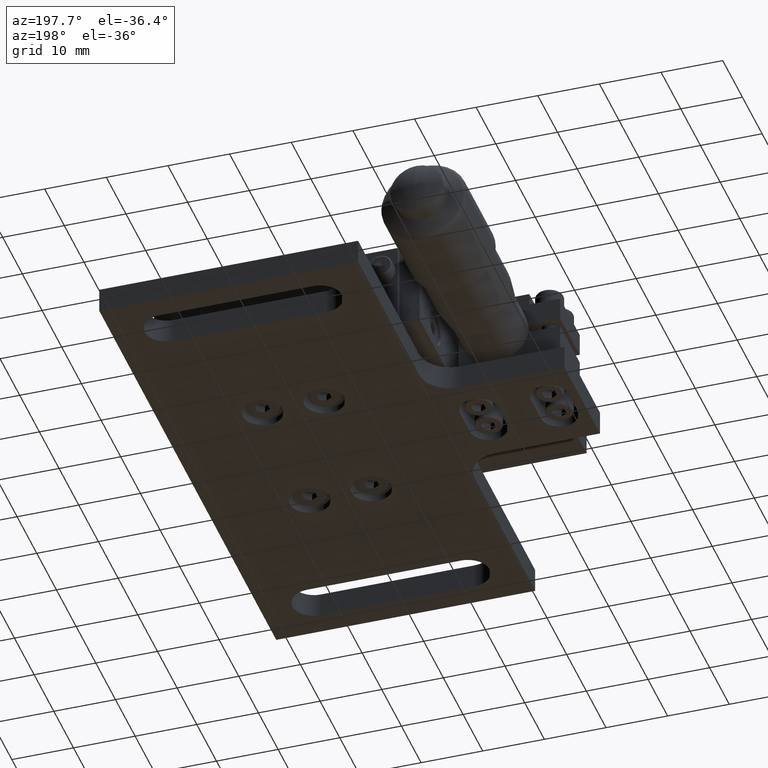
[diagram: clean part render]
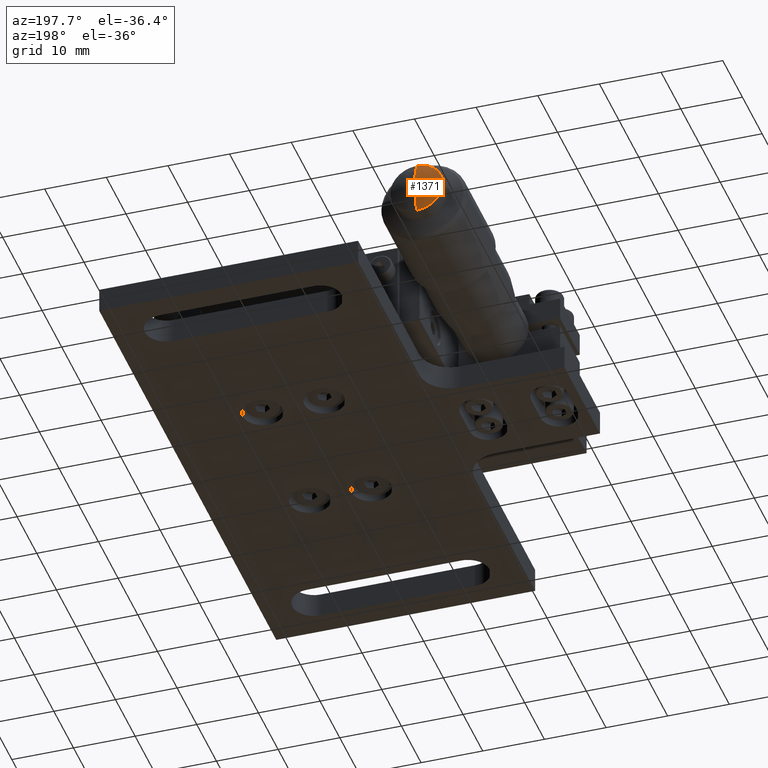
[diagram: same view with one face highlighted and labeled with its STEP entity id]
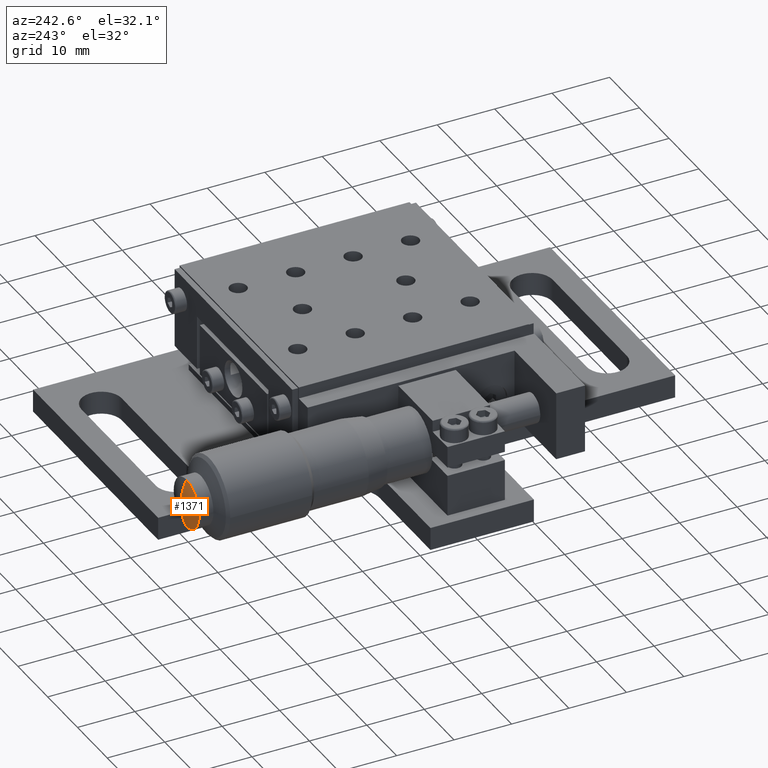
[diagram: same view with one face highlighted and labeled with its STEP entity id]
A machine part, auxiliary view. The second image highlights one B-rep face of the part: STEP entity #1371.
A second angle (auxiliary view) of the same face is appended — the face is thin or edge-on in the first view.
In plain terms, the highlighted face is a freeform B-spline surface patch.
Its self-contained STEP definition (entity closure, byte-faithful):
#1371=ADVANCED_FACE('',(#1992),#22113,.T.);
#1992=FACE_OUTER_BOUND('',#2715,.T.);
#2715=EDGE_LOOP('',(#5900,#5901,#5902,#5903,#5904));
#5900=ORIENTED_EDGE('',*,*,#18602,.F.);
#5901=ORIENTED_EDGE('',*,*,#18597,.F.);
#5902=ORIENTED_EDGE('',*,*,#18595,.F.);
#5903=ORIENTED_EDGE('',*,*,#18600,.F.);
#5904=ORIENTED_EDGE('',*,*,#18601,.F.);
#7395=PCURVE('',#21960,#10625);
#7397=PCURVE('',#21961,#10627);
#7400=PCURVE('',#21961,#10630);
#7405=PCURVE('',#21962,#10635);
#7408=PCURVE('',#21962,#10638);
#9130=PCURVE('',#22113,#12360);
#9131=PCURVE('',#22113,#12361);
#9132=PCURVE('',#22113,#12362);
#9133=PCURVE('',#22113,#12363);
#9134=PCURVE('',#22113,#12364);
#10625=DEFINITIONAL_REPRESENTATION('',(#13987),#46496);
#10627=DEFINITIONAL_REPRESENTATION('',(#13990),#46496);
#10630=DEFINITIONAL_REPRESENTATION('',(#13993),#46496);
#10635=DEFINITIONAL_REPRESENTATION('',(#13998),#46496);
#10638=DEFINITIONAL_REPRESENTATION('',(#14001),#46496);
#12360=DEFINITIONAL_REPRESENTATION('',(#16043),#46496);
#12361=DEFINITIONAL_REPRESENTATION('',(#16044),#46496);
#12362=DEFINITIONAL_REPRESENTATION('',(#16045),#46496);
#12363=DEFINITIONAL_REPRESENTATION('',(#16046),#46496);
#12364=DEFINITIONAL_REPRESENTATION('',(#16047),#46496);
#13987=B_SPLINE_CURVE_WITH_KNOTS('',1,(#38996,#38997),.UNSPECIFIED.,.F.,
 .F.,(2,2),(-0.746256432227072,0.),.UNSPECIFIED.);
#13990=B_SPLINE_CURVE_WITH_KNOTS('',1,(#39005,#39006),.UNSPECIFIED.,.F.,
 .F.,(2,2),(-13.3517687777562,-7.42214082110515),.UNSPECIFIED.);
#13993=B_SPLINE_CURVE_WITH_KNOTS('',1,(#39022,#39023),.UNSPECIFIED.,.F.,
 .F.,(2,2),(-7.42214082110517,-0.746256432227072),.UNSPECIFIED.);
#13998=B_SPLINE_CURVE_WITH_KNOTS('',1,(#39035,#39036),.UNSPECIFIED.,.F.,
 .F.,(2,2),(-1.5707963267949,-1.10861499240312),.UNSPECIFIED.);
#14001=B_SPLINE_CURVE_WITH_KNOTS('',1,(#39044,#39045),.UNSPECIFIED.,.F.,
 .F.,(2,2),(1.10861499240312,1.5707963267949),.UNSPECIFIED.);
#16043=B_SPLINE_CURVE_WITH_KNOTS('',1,(#46350,#46351),.UNSPECIFIED.,.F.,
 .F.,(2,2),(1.10861499240312,1.5707963267949),.UNSPECIFIED.);
#16044=B_SPLINE_CURVE_WITH_KNOTS('',1,(#46352,#46353),.UNSPECIFIED.,.F.,
 .F.,(2,2),(-13.3517687777562,-7.42214082110515),.UNSPECIFIED.);
#16045=B_SPLINE_CURVE_WITH_KNOTS('',1,(#46354,#46355),.UNSPECIFIED.,.F.,
 .F.,(2,2),(-0.746256432227072,0.),.UNSPECIFIED.);
#16046=B_SPLINE_CURVE_WITH_KNOTS('',1,(#46356,#46357),.UNSPECIFIED.,.F.,
 .F.,(2,2),(-7.42214082110517,-0.746256432227072),.UNSPECIFIED.);
#16047=B_SPLINE_CURVE_WITH_KNOTS('',1,(#46358,#46359),.UNSPECIFIED.,.F.,
 .F.,(2,2),(-1.5707963267949,-1.10861499240312),.UNSPECIFIED.);
#16911=SURFACE_CURVE('',#20147,(#7395,#9132),.PCURVE_S1.);
#16913=SURFACE_CURVE('',#20148,(#7397,#9131),.PCURVE_S1.);
#16916=SURFACE_CURVE('',#20151,(#7400,#9133),.PCURVE_S1.);
#16917=SURFACE_CURVE('',#20152,(#7405,#9134),.PCURVE_S1.);
#16918=SURFACE_CURVE('',#20153,(#7408,#9130),.PCURVE_S1.);
#18595=EDGE_CURVE('',#21265,#21263,#16911,.T.);
#18597=EDGE_CURVE('',#21263,#21268,#16913,.T.);
#18600=EDGE_CURVE('',#21809,#21265,#16916,.T.);
#18601=EDGE_CURVE('',#21267,#21809,#16917,.T.);
#18602=EDGE_CURVE('',#21268,#21267,#16918,.T.);
#20147=(
BOUNDED_CURVE()
B_SPLINE_CURVE(2,(#38993,#38994,#38995),.UNSPECIFIED.,.F.,.F.)
B_SPLINE_CURVE_WITH_KNOTS((3,3),(-0.746256432227072,0.),.UNSPECIFIED.)
CURVE()
GEOMETRIC_REPRESENTATION_ITEM()
RATIONAL_B_SPLINE_CURVE((1.,0.996148504894485,1.))
REPRESENTATION_ITEM('')
);
#20148=(
BOUNDED_CURVE()
B_SPLINE_CURVE(2,(#39002,#39003,#39004),.UNSPECIFIED.,.F.,.F.)
B_SPLINE_CURVE_WITH_KNOTS((3,3),(-13.3517687777562,-7.42214082110515),
 .UNSPECIFIED.)
CURVE()
GEOMETRIC_REPRESENTATION_ITEM()
RATIONAL_B_SPLINE_CURVE((1.,0.766383992701048,1.))
REPRESENTATION_ITEM('')
);
#20151=(
BOUNDED_CURVE()
B_SPLINE_CURVE(2,(#39019,#39020,#39021),.UNSPECIFIED.,.F.,.F.)
B_SPLINE_CURVE_WITH_KNOTS((3,3),(-7.42214082110517,-0.746256432227072),
 .UNSPECIFIED.)
CURVE()
GEOMETRIC_REPRESENTATION_ITEM()
RATIONAL_B_SPLINE_CURVE((1.,0.707106781186547,1.))
REPRESENTATION_ITEM('')
);
#20152=(
BOUNDED_CURVE()
B_SPLINE_CURVE(2,(#39032,#39033,#39034),.UNSPECIFIED.,.F.,.F.)
B_SPLINE_CURVE_WITH_KNOTS((3,3),(-1.5707963267949,-1.10861499240312),
 .UNSPECIFIED.)
CURVE()
GEOMETRIC_REPRESENTATION_ITEM()
RATIONAL_B_SPLINE_CURVE((1.,0.973417168333578,1.))
REPRESENTATION_ITEM('')
);
#20153=(
BOUNDED_CURVE()
B_SPLINE_CURVE(2,(#39041,#39042,#39043),.UNSPECIFIED.,.F.,.F.)
B_SPLINE_CURVE_WITH_KNOTS((3,3),(1.10861499240312,1.5707963267949),
 .UNSPECIFIED.)
CURVE()
GEOMETRIC_REPRESENTATION_ITEM()
RATIONAL_B_SPLINE_CURVE((1.,0.973417168333578,1.))
REPRESENTATION_ITEM('')
);
#21263=VERTEX_POINT('',#36434);
#21265=VERTEX_POINT('',#36436);
#21267=VERTEX_POINT('',#36438);
#21268=VERTEX_POINT('',#36439);
#21809=VERTEX_POINT('',#36980);
#21960=(
BOUNDED_SURFACE()
B_SPLINE_SURFACE(2,1,((#32786,#32787),(#32788,#32789),(#32790,#32791),(#32792,
#32793),(#32794,#32795),(#32796,#32797),(#32798,#32799),(#32800,#32801),
(#32802,#32803)),.UNSPECIFIED.,.T.,.F.,.F.)
B_SPLINE_SURFACE_WITH_KNOTS((3,2,2,2,3),(2,2),(0.,1.5707963267949,3.14159265358979,
4.71238898038469,6.28318530717959),(0.,3.24000000000004),.UNSPECIFIED.)
GEOMETRIC_REPRESENTATION_ITEM()
RATIONAL_B_SPLINE_SURFACE(((1.,1.),(0.707106781186548,0.707106781186548),
(1.,1.),(0.707106781186548,0.707106781186548),(1.,1.),(0.707106781186548,
0.707106781186548),(1.,1.),(0.707106781186548,0.707106781186548),(1.,1.)))
REPRESENTATION_ITEM('')
SURFACE()
);
#21961=(
BOUNDED_SURFACE()
B_SPLINE_SURFACE(2,1,((#32804,#32805),(#32806,#32807),(#32808,#32809),(#32810,
#32811),(#32812,#32813),(#32814,#32815),(#32816,#32817),(#32818,#32819),
(#32820,#32821)),.UNSPECIFIED.,.T.,.F.,.F.)
B_SPLINE_SURFACE_WITH_KNOTS((3,2,2,2,3),(2,2),(0.,1.5707963267949,3.14159265358979,
4.71238898038469,6.28318530717959),(0.,3.24000000000004),.UNSPECIFIED.)
GEOMETRIC_REPRESENTATION_ITEM()
RATIONAL_B_SPLINE_SURFACE(((1.,1.),(0.707106781186548,0.707106781186548),
(1.,1.),(0.707106781186548,0.707106781186548),(1.,1.),(0.707106781186548,
0.707106781186548),(1.,1.),(0.707106781186548,0.707106781186548),(1.,1.)))
REPRESENTATION_ITEM('')
SURFACE()
);
#21962=(
BOUNDED_SURFACE()
B_SPLINE_SURFACE(2,2,((#32822,#32823,#32824,#32825,#32826),(#32827,#32828,
#32829,#32830,#32831),(#32832,#32833,#32834,#32835,#32836),(#32837,#32838,
#32839,#32840,#32841),(#32842,#32843,#32844,#32845,#32846)),
 .UNSPECIFIED.,.F.,.F.,.F.)
B_SPLINE_SURFACE_WITH_KNOTS((3,2,3),(3,2,3),(0.,1.5707963267949,3.14159265358979),
(-1.5707963267949,0.,1.5707963267949),.UNSPECIFIED.)
GEOMETRIC_REPRESENTATION_ITEM()
RATIONAL_B_SPLINE_SURFACE(((1.,0.707106781186548,1.,0.707106781186548,1.),
(0.707106781186548,0.5,0.707106781186548,0.5,0.707106781186548),(1.,0.707106781186548,
1.,0.707106781186548,1.),(0.707106781186548,0.5,0.707106781186548,0.5,0.707106781186548),
(1.,0.707106781186548,1.,0.707106781186548,1.)))
REPRESENTATION_ITEM('')
SURFACE()
);
#22113=(
BOUNDED_SURFACE()
B_SPLINE_SURFACE(2,2,((#36066,#36067,#36068,#36069,#36070),(#36071,#36072,
#36073,#36074,#36075),(#36076,#36077,#36078,#36079,#36080),(#36081,#36082,
#36083,#36084,#36085),(#36086,#36087,#36088,#36089,#36090)),
 .UNSPECIFIED.,.F.,.F.,.F.)
B_SPLINE_SURFACE_WITH_KNOTS((3,2,3),(3,2,3),(3.14159265358979,4.71238898038469,
6.28318530717959),(-1.5707963267949,0.,1.5707963267949),.UNSPECIFIED.)
GEOMETRIC_REPRESENTATION_ITEM()
RATIONAL_B_SPLINE_SURFACE(((1.,0.707106781186548,1.,0.707106781186548,1.),
(0.707106781186548,0.5,0.707106781186548,0.5,0.707106781186548),(1.,0.707106781186548,
1.,0.707106781186548,1.),(0.707106781186548,0.5,0.707106781186548,0.5,0.707106781186548),
(1.,0.707106781186548,1.,0.707106781186548,1.)))
REPRESENTATION_ITEM('')
SURFACE()
);
#32786=CARTESIAN_POINT('',(-23.4500000000006,42.2046896551723,12.0747069675039));
#32787=CARTESIAN_POINT('',(-23.4500000000006,45.4446896551724,12.0747069675039));
#32788=CARTESIAN_POINT('',(-23.4500000000006,42.2046896551723,16.3247069675038));
#32789=CARTESIAN_POINT('',(-23.4500000000006,45.4446896551724,16.3247069675038));
#32790=CARTESIAN_POINT('',(-19.2000000000007,42.2046896551723,16.3247069675038));
#32791=CARTESIAN_POINT('',(-19.2000000000007,45.4446896551724,16.3247069675038));
#32792=CARTESIAN_POINT('',(-14.9500000000008,42.2046896551723,16.3247069675038));
#32793=CARTESIAN_POINT('',(-14.9500000000008,45.4446896551724,16.3247069675038));
#32794=CARTESIAN_POINT('',(-14.9500000000008,42.2046896551723,12.0747069675039));
#32795=CARTESIAN_POINT('',(-14.9500000000008,45.4446896551724,12.0747069675039));
#32796=CARTESIAN_POINT('',(-14.9500000000008,42.2046896551723,7.824706967504));
#32797=CARTESIAN_POINT('',(-14.9500000000008,45.4446896551724,7.824706967504));
#32798=CARTESIAN_POINT('',(-19.2000000000007,42.2046896551723,7.824706967504));
#32799=CARTESIAN_POINT('',(-19.2000000000007,45.4446896551724,7.824706967504));
#32800=CARTESIAN_POINT('',(-23.4500000000006,42.2046896551723,7.824706967504));
#32801=CARTESIAN_POINT('',(-23.4500000000006,45.4446896551724,7.824706967504));
#32802=CARTESIAN_POINT('',(-23.4500000000006,42.2046896551723,12.0747069675039));
#32803=CARTESIAN_POINT('',(-23.4500000000006,45.4446896551724,12.0747069675039));
#32804=CARTESIAN_POINT('',(-23.4500000000006,42.2046896551723,12.0747069675039));
#32805=CARTESIAN_POINT('',(-23.4500000000006,45.4446896551724,12.0747069675039));
#32806=CARTESIAN_POINT('',(-23.4500000000006,42.2046896551723,16.3247069675038));
#32807=CARTESIAN_POINT('',(-23.4500000000006,45.4446896551724,16.3247069675038));
#32808=CARTESIAN_POINT('',(-19.2000000000007,42.2046896551723,16.3247069675038));
#32809=CARTESIAN_POINT('',(-19.2000000000007,45.4446896551724,16.3247069675038));
#32810=CARTESIAN_POINT('',(-14.9500000000008,42.2046896551723,16.3247069675038));
#32811=CARTESIAN_POINT('',(-14.9500000000008,45.4446896551724,16.3247069675038));
#32812=CARTESIAN_POINT('',(-14.9500000000008,42.2046896551723,12.0747069675039));
#32813=CARTESIAN_POINT('',(-14.9500000000008,45.4446896551724,12.0747069675039));
#32814=CARTESIAN_POINT('',(-14.9500000000008,42.2046896551723,7.824706967504));
#32815=CARTESIAN_POINT('',(-14.9500000000008,45.4446896551724,7.824706967504));
#32816=CARTESIAN_POINT('',(-19.2000000000007,42.2046896551723,7.824706967504));
#32817=CARTESIAN_POINT('',(-19.2000000000007,45.4446896551724,7.824706967504));
#32818=CARTESIAN_POINT('',(-23.4500000000006,42.2046896551723,7.824706967504));
#32819=CARTESIAN_POINT('',(-23.4500000000006,45.4446896551724,7.824706967504));
#32820=CARTESIAN_POINT('',(-23.4500000000006,42.2046896551723,12.0747069675039));
#32821=CARTESIAN_POINT('',(-23.4500000000006,45.4446896551724,12.0747069675039));
#32822=CARTESIAN_POINT('',(-19.2000000000007,46.0746896551724,12.0747069675039));
#32823=CARTESIAN_POINT('',(-19.2000000000007,46.0746896551724,2.54345696750387));
#32824=CARTESIAN_POINT('',(-19.2000000000007,36.5434396551723,2.54345696750387));
#32825=CARTESIAN_POINT('',(-19.2000000000007,27.0121896551723,2.54345696750387));
#32826=CARTESIAN_POINT('',(-19.2000000000007,27.0121896551723,12.0747069675039));
#32827=CARTESIAN_POINT('',(-19.2000000000007,46.0746896551724,12.0747069675039));
#32828=CARTESIAN_POINT('',(-9.66875000000066,46.0746896551724,2.54345696750387));
#32829=CARTESIAN_POINT('',(-9.66875000000066,36.5434396551723,2.54345696750387));
#32830=CARTESIAN_POINT('',(-9.66875000000066,27.0121896551723,2.54345696750387));
#32831=CARTESIAN_POINT('',(-19.2000000000007,27.0121896551723,12.0747069675039));
#32832=CARTESIAN_POINT('',(-19.2000000000007,46.0746896551724,12.0747069675039));
#32833=CARTESIAN_POINT('',(-9.66875000000066,46.0746896551724,12.0747069675039));
#32834=CARTESIAN_POINT('',(-9.66875000000066,36.5434396551723,12.0747069675039));
#32835=CARTESIAN_POINT('',(-9.66875000000066,27.0121896551723,12.0747069675039));
#32836=CARTESIAN_POINT('',(-19.2000000000007,27.0121896551723,12.0747069675039));
#32837=CARTESIAN_POINT('',(-19.2000000000007,46.0746896551724,12.0747069675039));
#32838=CARTESIAN_POINT('',(-9.66875000000066,46.0746896551724,21.6059569675039));
#32839=CARTESIAN_POINT('',(-9.66875000000066,36.5434396551723,21.6059569675039));
#32840=CARTESIAN_POINT('',(-9.66875000000066,27.0121896551723,21.6059569675039));
#32841=CARTESIAN_POINT('',(-19.2000000000007,27.0121896551723,12.0747069675039));
#32842=CARTESIAN_POINT('',(-19.2000000000007,46.0746896551724,12.0747069675039));
#32843=CARTESIAN_POINT('',(-19.2000000000007,46.0746896551724,21.6059569675039));
#32844=CARTESIAN_POINT('',(-19.2000000000007,36.5434396551723,21.605956967504));
#32845=CARTESIAN_POINT('',(-19.2000000000007,27.0121896551723,21.605956967504));
#32846=CARTESIAN_POINT('',(-19.2000000000007,27.0121896551723,12.0747069675039));
#36066=CARTESIAN_POINT('',(-19.2000000000007,46.0746896551724,12.0747069675039));
#36067=CARTESIAN_POINT('',(-19.2000000000007,46.0746896551724,21.6059569675039));
#36068=CARTESIAN_POINT('',(-19.2000000000007,36.5434396551723,21.605956967504));
#36069=CARTESIAN_POINT('',(-19.2000000000007,27.0121896551723,21.6059569675039));
#36070=CARTESIAN_POINT('',(-19.2000000000007,27.0121896551723,12.0747069675039));
#36071=CARTESIAN_POINT('',(-19.2000000000007,46.0746896551724,12.0747069675039));
#36072=CARTESIAN_POINT('',(-28.7312500000007,46.0746896551724,21.6059569675039));
#36073=CARTESIAN_POINT('',(-28.7312500000007,36.5434396551723,21.605956967504));
#36074=CARTESIAN_POINT('',(-28.7312500000007,27.0121896551723,21.6059569675039));
#36075=CARTESIAN_POINT('',(-19.2000000000007,27.0121896551723,12.0747069675039));
#36076=CARTESIAN_POINT('',(-19.2000000000007,46.0746896551724,12.0747069675039));
#36077=CARTESIAN_POINT('',(-28.7312500000007,46.0746896551724,12.0747069675039));
#36078=CARTESIAN_POINT('',(-28.7312500000007,36.5434396551723,12.0747069675039));
#36079=CARTESIAN_POINT('',(-28.7312500000007,27.0121896551723,12.0747069675039));
#36080=CARTESIAN_POINT('',(-19.2000000000007,27.0121896551723,12.0747069675039));
#36081=CARTESIAN_POINT('',(-19.2000000000007,46.0746896551724,12.0747069675039));
#36082=CARTESIAN_POINT('',(-28.7312500000007,46.0746896551724,2.54345696750387));
#36083=CARTESIAN_POINT('',(-28.7312500000007,36.5434396551723,2.54345696750387));
#36084=CARTESIAN_POINT('',(-28.7312500000007,27.0121896551723,2.54345696750387));
#36085=CARTESIAN_POINT('',(-19.2000000000007,27.0121896551723,12.0747069675039));
#36086=CARTESIAN_POINT('',(-19.2000000000007,46.0746896551724,12.0747069675039));
#36087=CARTESIAN_POINT('',(-19.2000000000007,46.0746896551724,2.54345696750387));
#36088=CARTESIAN_POINT('',(-19.2000000000007,36.5434396551723,2.54345696750386));
#36089=CARTESIAN_POINT('',(-19.2000000000007,27.0121896551723,2.54345696750387));
#36090=CARTESIAN_POINT('',(-19.2000000000007,27.0121896551723,12.0747069675039));
#36434=CARTESIAN_POINT('',(-23.3846506723305,45.0746896551724,11.3322793612225));
#36436=CARTESIAN_POINT('',(-23.4500000000006,45.0746896551723,12.0747069675039));
#36438=CARTESIAN_POINT('',(-19.2000000000007,46.0746896551724,12.0747069675039));
#36439=CARTESIAN_POINT('',(-19.2000000000007,45.0746896551724,7.82470696750401));
#36980=CARTESIAN_POINT('',(-19.2000000000007,45.0746896551724,16.3247069675038));
#38993=CARTESIAN_POINT('',(-23.4500000000006,45.0746896551723,12.0747069675039));
#38994=CARTESIAN_POINT('',(-23.4500000000006,45.0746896551723,11.7006171030538));
#38995=CARTESIAN_POINT('',(-23.3846506723305,45.0746896551724,11.3322793612225));
#38996=CARTESIAN_POINT('',(6.28318530717959,2.87000000000002));
#38997=CARTESIAN_POINT('',(6.0945297823525,2.87000000000002));
#39002=CARTESIAN_POINT('',(-23.3846506723305,45.0746896551724,11.3322793612225));
#39003=CARTESIAN_POINT('',(-22.7623481720654,45.0746896551724,7.82470696750401));
#39004=CARTESIAN_POINT('',(-19.2000000000007,45.0746896551724,7.82470696750401));
#39005=CARTESIAN_POINT('',(6.0945297823525,2.87000000000002));
#39006=CARTESIAN_POINT('',(4.71238898038469,2.87000000000001));
#39019=CARTESIAN_POINT('',(-19.2000000000007,45.0746896551724,16.3247069675038));
#39020=CARTESIAN_POINT('',(-23.4500000000006,45.0746896551723,16.3247069675038));
#39021=CARTESIAN_POINT('',(-23.4500000000006,45.0746896551723,12.0747069675039));
#39022=CARTESIAN_POINT('',(1.5707963267949,2.87000000000001));
#39023=CARTESIAN_POINT('',(0.,2.87000000000002));
#39032=CARTESIAN_POINT('',(-19.2000000000007,46.0746896551724,12.0747069675039));
#39033=CARTESIAN_POINT('',(-19.2000000000007,46.0746896551724,14.3173540263274));
#39034=CARTESIAN_POINT('',(-19.2000000000007,45.0746896551724,16.3247069675038));
#39035=CARTESIAN_POINT('',(3.14159265358979,-1.5707963267949));
#39036=CARTESIAN_POINT('',(3.14159265358979,-1.09452279442498));
#39041=CARTESIAN_POINT('',(-19.2000000000007,45.0746896551724,7.82470696750401));
#39042=CARTESIAN_POINT('',(-19.2000000000007,46.0746896551724,9.83205990868044));
#39043=CARTESIAN_POINT('',(-19.2000000000007,46.0746896551724,12.0747069675039));
#39044=CARTESIAN_POINT('',(0.,-1.09452279442498));
#39045=CARTESIAN_POINT('',(0.,-1.5707963267949));
#46350=CARTESIAN_POINT('',(6.28318530717959,-1.09452279442498));
#46351=CARTESIAN_POINT('',(6.28318530717959,-1.5707963267949));
#46352=CARTESIAN_POINT('',(4.90104450521178,-1.09452279442498));
#46353=CARTESIAN_POINT('',(6.28318530717959,-1.09452279442498));
#46354=CARTESIAN_POINT('',(4.71238898038469,-1.09452279442498));
#46355=CARTESIAN_POINT('',(4.90104450521178,-1.09452279442498));
#46356=CARTESIAN_POINT('',(3.14159265358979,-1.09452279442498));
#46357=CARTESIAN_POINT('',(4.71238898038469,-1.09452279442498));
#46358=CARTESIAN_POINT('',(3.14159265358979,-1.5707963267949));
#46359=CARTESIAN_POINT('',(3.14159265358979,-1.09452279442498));
#46496=(
GEOMETRIC_REPRESENTATION_CONTEXT(2)
PARAMETRIC_REPRESENTATION_CONTEXT()
REPRESENTATION_CONTEXT('pspace','')
);